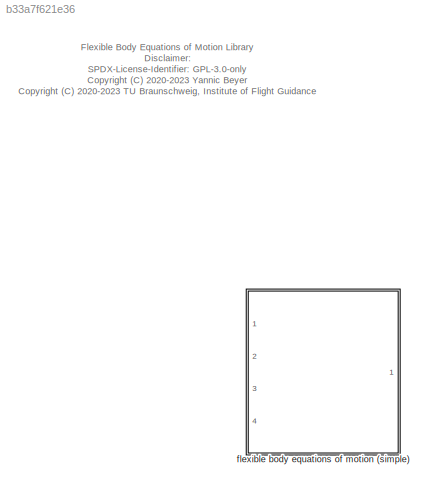
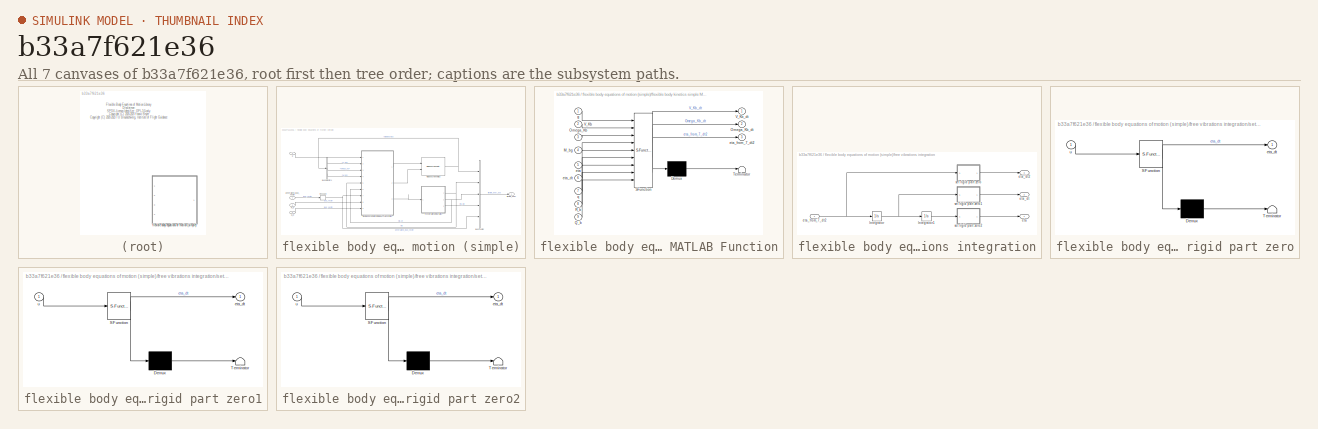
[diagram: thumbnail index - all 7 canvases of the model, root first then tree order]
MODEL slx_b33a7f621e36
KIND library
CONFIG AbsTol = auto
CONFIG EnableMultiTasking = off
CONFIG FixedStep = auto
CONFIG MaxStep = auto
CONFIG MinStep = auto
CONFIG RelTol = 1e-3
CONFIG SampleTimeConstraint = Unconstrained
CONFIG Solver = VariableStepAuto
CONFIG SolverName = VariableStepAuto
CONFIG StartTime = 0.0
CONFIG StopTime = 10.0
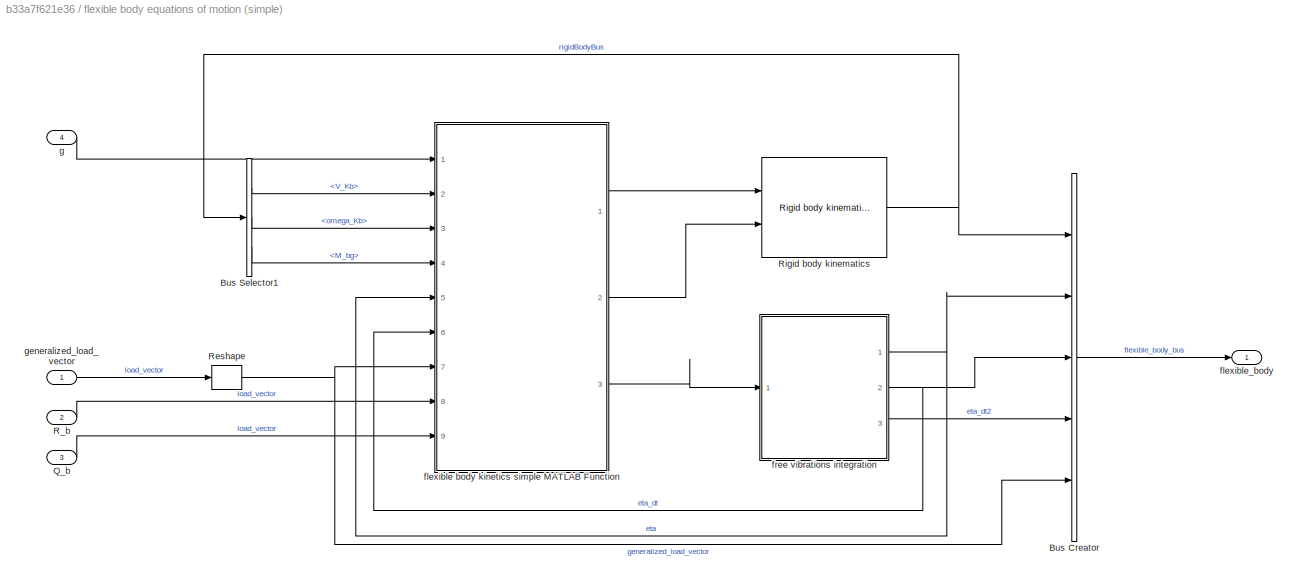
BLOCK [SubSystem] flexible body equations of motion (simple)
  Ports = [4, 1]
  RequestExecContextInheritance = off
BLOCK [BusCreator] flexible body equations of motion (simple)/Bus Creator
  DisplayOption = bar
  InheritFromInputs = on
  Inputs = 5
  Ports = [5, 1]
BLOCK [BusSelector] flexible body equations of motion (simple)/Bus Selector1
  OutputAsBus = off
  OutputSignals = V_Kb,omega_Kb,M_bg
  Ports = [1, 3]
BLOCK [Inport] flexible body equations of motion (simple)/Q_b
  IconDisplay = Port number
  Port = 3
BLOCK [Inport] flexible body equations of motion (simple)/R_b
  IconDisplay = Port number
  Port = 2
BLOCK [Reshape] flexible body equations of motion (simple)/Reshape
  OutputDimensionality = Column vector (2-D)
  Ports = [1, 1]
BLOCK [Reference] flexible body equations of motion (simple)/Rigid body kinematics  REF=rigidBody_lib/Rigid body kinematics
  Ports = [2, 1]
  SourceBlock = rigidBody_lib/Rigid body kinematics
  SourceProductName = LADAC
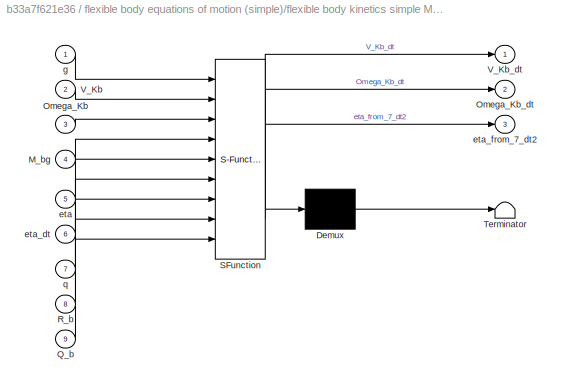
BLOCK [SubSystem] flexible body equations of motion (simple)/flexible body kinetics simple MATLAB Function
  ErrorFcn = Stateflow.Translate.translate
  PermitHierarchicalResolution = ExplicitOnly
  Ports = [9, 3]
  RequestExecContextInheritance = off
  SFBlockType = MATLAB Function
  TreatAsAtomicUnit = on
BLOCK [Demux] flexible body equations of motion (simple)/flexible body kinetics simple MATLAB Function/ Demux 
  Outputs = 1
  Ports = [1, 1]
BLOCK [S-Function] flexible body equations of motion (simple)/flexible body kinetics simple MATLAB Function/ SFunction 
  EnableBusSupport = off
  FunctionName = sf_sfun
  Parameters = I_b,cg_nodes,m,m_nodes,structure_red
  PortCounts = [9 4]
  Ports = [9, 4]
  SFcnIsStateOwnerBlock = off
  SFunctionDeploymentMode = off
  Tag = Stateflow S-Function flexibleBody_lib 2
BLOCK [Terminator] flexible body equations of motion (simple)/flexible body kinetics simple MATLAB Function/ Terminator 
BLOCK [Inport] flexible body equations of motion (simple)/flexible body kinetics simple MATLAB Function/M_bg
  IconDisplay = Port number
  Port = 4
BLOCK [Inport] flexible body equations of motion (simple)/flexible body kinetics simple MATLAB Function/Omega_Kb
  IconDisplay = Port number
  Port = 3
BLOCK [Outport] flexible body equations of motion (simple)/flexible body kinetics simple MATLAB Function/Omega_Kb_dt
  IconDisplay = Port number
  Port = 2
BLOCK [Inport] flexible body equations of motion (simple)/flexible body kinetics simple MATLAB Function/Q_b
  IconDisplay = Port number
  Port = 9
BLOCK [Inport] flexible body equations of motion (simple)/flexible body kinetics simple MATLAB Function/R_b
  IconDisplay = Port number
  Port = 8
BLOCK [Inport] flexible body equations of motion (simple)/flexible body kinetics simple MATLAB Function/V_Kb
  IconDisplay = Port number
  Port = 2
BLOCK [Outport] flexible body equations of motion (simple)/flexible body kinetics simple MATLAB Function/V_Kb_dt
  IconDisplay = Port number
BLOCK [Inport] flexible body equations of motion (simple)/flexible body kinetics simple MATLAB Function/eta
  IconDisplay = Port number
  Port = 5
BLOCK [Inport] flexible body equations of motion (simple)/flexible body kinetics simple MATLAB Function/eta_dt
  IconDisplay = Port number
  Port = 6
BLOCK [Outport] flexible body equations of motion (simple)/flexible body kinetics simple MATLAB Function/eta_from_7_dt2
  IconDisplay = Port number
  Port = 3
BLOCK [Inport] flexible body equations of motion (simple)/flexible body kinetics simple MATLAB Function/g
  IconDisplay = Port number
BLOCK [Inport] flexible body equations of motion (simple)/flexible body kinetics simple MATLAB Function/q
  IconDisplay = Port number
  Port = 7
BLOCK [Outport] flexible body equations of motion (simple)/flexible_body
  IconDisplay = Port number
BLOCK [SubSystem] flexible body equations of motion (simple)/free vibrations integration
  Ports = [1, 3]
  RequestExecContextInheritance = off
BLOCK [Integrator] flexible body equations of motion (simple)/free vibrations integration/Integrator
  InitialCondition = structure_vel_0
  Ports = [1, 1]
BLOCK [Integrator] flexible body equations of motion (simple)/free vibrations integration/Integrator1
  InitialCondition = structure_pos_0
  Ports = [1, 1]
BLOCK [Outport] flexible body equations of motion (simple)/free vibrations integration/eta
  IconDisplay = Port number
BLOCK [Outport] flexible body equations of motion (simple)/free vibrations integration/eta_dt
  IconDisplay = Port number
  Port = 2
BLOCK [Outport] flexible body equations of motion (simple)/free vibrations integration/eta_dt2
  IconDisplay = Port number
  Port = 3
BLOCK [Inport] flexible body equations of motion (simple)/free vibrations integration/eta_from_7_dt2
  IconDisplay = Port number
BLOCK [SubSystem] flexible body equations of motion (simple)/free vibrations integration/set rigid part zero
  ErrorFcn = Stateflow.Translate.translate
  PermitHierarchicalResolution = ExplicitOnly
  Ports = [1, 1]
  RequestExecContextInheritance = off
  SFBlockType = MATLAB Function
  TreatAsAtomicUnit = on
BLOCK [Demux] flexible body equations of motion (simple)/free vibrations integration/set rigid part zero/ Demux 
  Outputs = 1
  Ports = [1, 1]
BLOCK [S-Function] flexible body equations of motion (simple)/free vibrations integration/set rigid part zero/ SFunction 
  EnableBusSupport = off
  FunctionName = sf_sfun
  PortCounts = [1 2]
  Ports = [1, 2]
  SFcnIsStateOwnerBlock = off
  SFunctionDeploymentMode = off
  Tag = Stateflow S-Function flexibleBody_lib 20
BLOCK [Terminator] flexible body equations of motion (simple)/free vibrations integration/set rigid part zero/ Terminator 
BLOCK [Outport] flexible body equations of motion (simple)/free vibrations integration/set rigid part zero/eta_dt
  IconDisplay = Port number
BLOCK [Inport] flexible body equations of motion (simple)/free vibrations integration/set rigid part zero/u
  IconDisplay = Port number
BLOCK [SubSystem] flexible body equations of motion (simple)/free vibrations integration/set rigid part zero1
  ErrorFcn = Stateflow.Translate.translate
  PermitHierarchicalResolution = ExplicitOnly
  Ports = [1, 1]
  RequestExecContextInheritance = off
  SFBlockType = MATLAB Function
  TreatAsAtomicUnit = on
BLOCK [Demux] flexible body equations of motion (simple)/free vibrations integration/set rigid part zero1/ Demux 
  Outputs = 1
  Ports = [1, 1]
BLOCK [S-Function] flexible body equations of motion (simple)/free vibrations integration/set rigid part zero1/ SFunction 
  EnableBusSupport = off
  FunctionName = sf_sfun
  PortCounts = [1 2]
  Ports = [1, 2]
  SFcnIsStateOwnerBlock = off
  SFunctionDeploymentMode = off
  Tag = Stateflow S-Function flexibleBody_lib 1
BLOCK [Terminator] flexible body equations of motion (simple)/free vibrations integration/set rigid part zero1/ Terminator 
BLOCK [Outport] flexible body equations of motion (simple)/free vibrations integration/set rigid part zero1/eta_dt
  IconDisplay = Port number
BLOCK [Inport] flexible body equations of motion (simple)/free vibrations integration/set rigid part zero1/u
  IconDisplay = Port number
BLOCK [SubSystem] flexible body equations of motion (simple)/free vibrations integration/set rigid part zero2
  ErrorFcn = Stateflow.Translate.translate
  PermitHierarchicalResolution = ExplicitOnly
  Ports = [1, 1]
  RequestExecContextInheritance = off
  SFBlockType = MATLAB Function
  TreatAsAtomicUnit = on
BLOCK [Demux] flexible body equations of motion (simple)/free vibrations integration/set rigid part zero2/ Demux 
  Outputs = 1
  Ports = [1, 1]
BLOCK [S-Function] flexible body equations of motion (simple)/free vibrations integration/set rigid part zero2/ SFunction 
  EnableBusSupport = off
  FunctionName = sf_sfun
  PortCounts = [1 2]
  Ports = [1, 2]
  SFcnIsStateOwnerBlock = off
  SFunctionDeploymentMode = off
  Tag = Stateflow S-Function flexibleBody_lib 3
BLOCK [Terminator] flexible body equations of motion (simple)/free vibrations integration/set rigid part zero2/ Terminator 
BLOCK [Outport] flexible body equations of motion (simple)/free vibrations integration/set rigid part zero2/eta_dt
  IconDisplay = Port number
BLOCK [Inport] flexible body equations of motion (simple)/free vibrations integration/set rigid part zero2/u
  IconDisplay = Port number
BLOCK [Inport] flexible body equations of motion (simple)/g
  IconDisplay = Port number
  Port = 4
BLOCK [Inport] flexible body equations of motion (simple)/generalized_load_vector
  IconDisplay = Port number
ANNOTATION (root): Flexible Body Equations of Motion Library Disclaimer: SPDX-License-Identifier: GPL-3.0-only <copyright redacted>
LINE flexible body equations of motion (simple)/Bus Creator:1 -> flexible body equations of motion (simple)/flexible_body:1
LINE flexible body equations of motion (simple)/Bus Selector1:1 -> flexible body equations of motion (simple)/flexible body kinetics simple MATLAB Function:2
LINE flexible body equations of motion (simple)/Bus Selector1:2 -> flexible body equations of motion (simple)/flexible body kinetics simple MATLAB Function:3
LINE flexible body equations of motion (simple)/Bus Selector1:3 -> flexible body equations of motion (simple)/flexible body kinetics simple MATLAB Function:4
LINE flexible body equations of motion (simple)/Q_b:1 -> flexible body equations of motion (simple)/flexible body kinetics simple MATLAB Function:9
LINE flexible body equations of motion (simple)/R_b:1 -> flexible body equations of motion (simple)/flexible body kinetics simple MATLAB Function:8
NET flexible body equations of motion (simple)/Reshape:1 -> flexible body equations of motion (simple)/Bus Creator:5, flexible body equations of motion (simple)/flexible body kinetics simple MATLAB Function:7
NET flexible body equations of motion (simple)/Rigid body kinematics:1 -> flexible body equations of motion (simple)/Bus Creator:1, flexible body equations of motion (simple)/Bus Selector1:1
LINE flexible body equations of motion (simple)/flexible body kinetics simple MATLAB Function:1 -> flexible body equations of motion (simple)/Rigid body kinematics:1
LINE flexible body equations of motion (simple)/flexible body kinetics simple MATLAB Function:2 -> flexible body equations of motion (simple)/Rigid body kinematics:2
LINE flexible body equations of motion (simple)/flexible body kinetics simple MATLAB Function:3 -> flexible body equations of motion (simple)/free vibrations integration:1
LINE flexible body equations of motion (simple)/free vibrations integration/Integrator1:1 -> flexible body equations of motion (simple)/free vibrations integration/set rigid part zero2:1
NET flexible body equations of motion (simple)/free vibrations integration/Integrator:1 -> flexible body equations of motion (simple)/free vibrations integration/Integrator1:1, flexible body equations of motion (simple)/free vibrations integration/set rigid part zero1:1
NET flexible body equations of motion (simple)/free vibrations integration/eta_from_7_dt2:1 -> flexible body equations of motion (simple)/free vibrations integration/Integrator:1, flexible body equations of motion (simple)/free vibrations integration/set rigid part zero:1
LINE flexible body equations of motion (simple)/free vibrations integration/set rigid part zero1:1 -> flexible body equations of motion (simple)/free vibrations integration/eta_dt:1
LINE flexible body equations of motion (simple)/free vibrations integration/set rigid part zero2:1 -> flexible body equations of motion (simple)/free vibrations integration/eta:1
LINE flexible body equations of motion (simple)/free vibrations integration/set rigid part zero:1 -> flexible body equations of motion (simple)/free vibrations integration/eta_dt2:1
NET flexible body equations of motion (simple)/free vibrations integration:1 -> flexible body equations of motion (simple)/Bus Creator:2, flexible body equations of motion (simple)/flexible body kinetics simple MATLAB Function:5
NET flexible body equations of motion (simple)/free vibrations integration:2 -> flexible body equations of motion (simple)/Bus Creator:3, flexible body equations of motion (simple)/flexible body kinetics simple MATLAB Function:6
LINE flexible body equations of motion (simple)/free vibrations integration:3 -> flexible body equations of motion (simple)/Bus Creator:4
LINE flexible body equations of motion (simple)/g:1 -> flexible body equations of motion (simple)/flexible body kinetics simple MATLAB Function:1
LINE flexible body equations of motion (simple)/generalized_load_vector:1 -> flexible body equations of motion (simple)/Reshape:1
note: NET lines group one-source signal fan-out (src -> all destinations, sorted); 1:1 wires keep LINE
CHART flexible body equations of motion
(simple)/free vibrations integration/set rigid part zero1 states=1 transitions=1
  STATE_LABEL 'eML_blk_kernel()'
  STATE_LABEL 'SCRIPT:\nfunction eta_dt = fcn(u) %#codegen\neta_dt = [zeros(6,1);u];\nend'
CHART flexible body equations of motion
(simple)/flexible body kinetics simple
MATLAB Function states=1 transitions=1
  STATE_LABEL 'eML_blk_kernel()'
  STATE_LABEL 'SCRIPT:\nfunction [V_Kb_dt,Omega_Kb_dt,eta_from_7_dt2] = ...\n    flexibleBodyKineticsSimple( m, I_b, g, structure_red, m_nodes, ...\n    V_Kb, Omega_Kb, M_bg, eta, eta_dt, q, R_b, Q_b, cg_nodes)\n[V_Kb_dt,Omega_Kb_dt,eta_from_7_dt2] = ...\n    flexibleBodyKineticsSimple( m, I_b, g, structure_red, m_nodes, ...\n    cg_nodes, V_Kb, Omega_Kb, M_bg, eta, eta_dt, q, R_b, Q_b );\nend\n'
CHART flexible body equations of motion
(simple)/free vibrations integration/set rigid part zero2 states=1 transitions=1
  STATE_LABEL 'eML_blk_kernel()'
  STATE_LABEL 'SCRIPT:\nfunction eta_dt = fcn(u) %#codegen\neta_dt = [zeros(6,1);u];\nend'
CHART flexible body equations of motion
(simple)/free vibrations integration/set rigid part zero states=1 transitions=1
  STATE_LABEL 'eML_blk_kernel()'
  STATE_LABEL 'SCRIPT:\nfunction eta_dt = fcn(u) %#codegen\neta_dt = [zeros(6,1);u];\nend'
